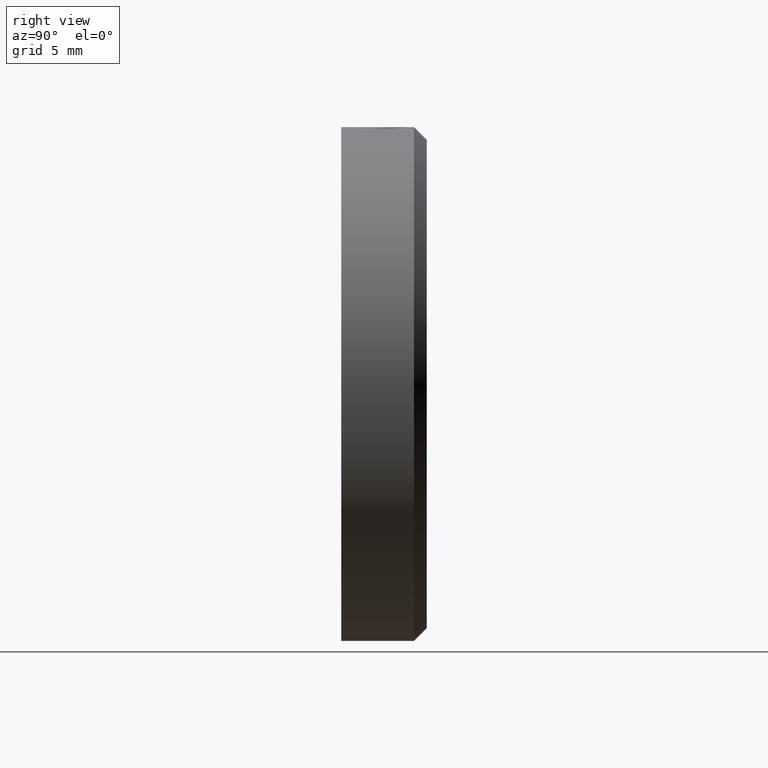
[diagram: clean part render]
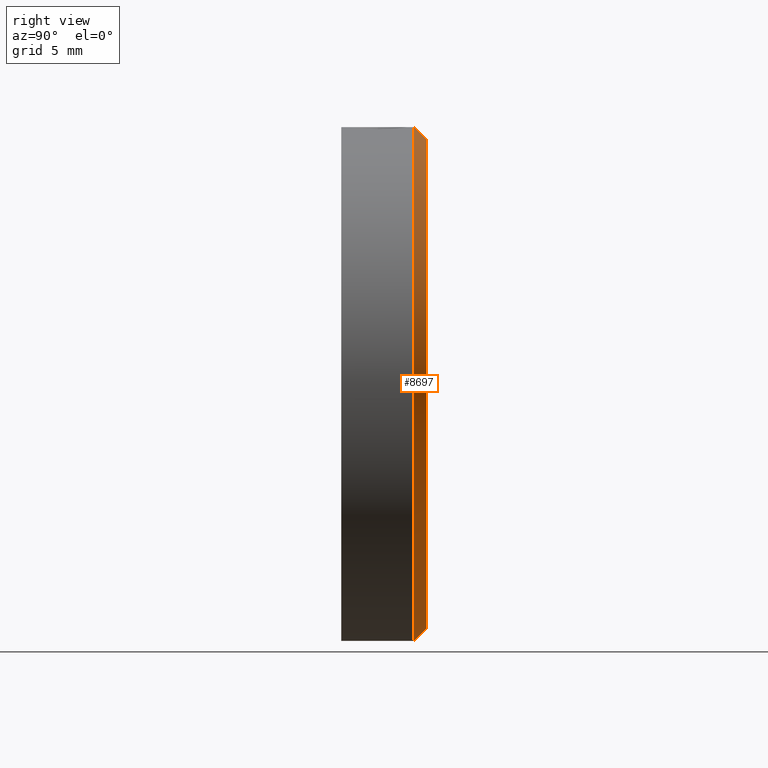
[diagram: same view with one face highlighted and labeled with its STEP entity id]
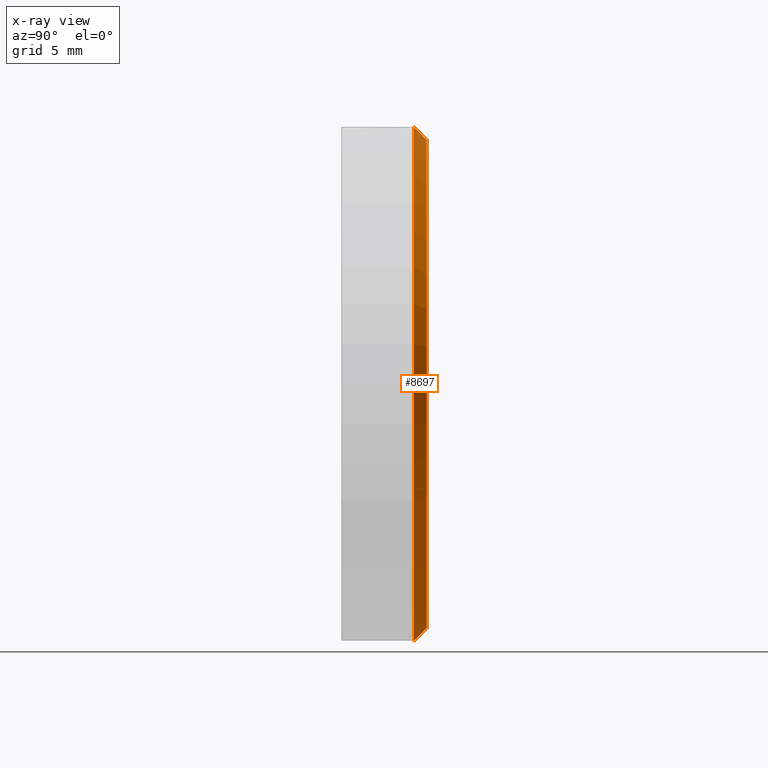
[diagram: x-ray of the same camera — body ghosted, the highlighted face saturated]
A machine part, right view. The second image highlights one B-rep face of the part: STEP entity #8697.
The next image is the same camera in x-ray: the body ghosted, the highlighted face saturated — about 0% of this face is hidden behind the body in this view.
In plain terms, the highlighted conical surface has half-angle 45 deg.
Its self-contained STEP definition (entity closure, byte-faithful):
#829 = DIRECTION ( 'NONE',  ( 0.000000000000000000, 0.000000000000000000, -1.000000000000000000 ) ) ;
#1017 = DIRECTION ( 'NONE',  ( 0.000000000000000000, 0.000000000000000000, 1.000000000000000000 ) ) ;
#1114 = CARTESIAN_POINT ( 'NONE',  ( 0.000000000000000000, 5.000000000000000000, 0.000000000000000000 ) ) ;
#1366 = AXIS2_PLACEMENT_3D ( 'NONE', #3684, #10574, #4844 ) ;
#1415 = VERTEX_POINT ( 'NONE', #12777 ) ;
#1786 = ORIENTED_EDGE ( 'NONE', *, *, #12443, .F. ) ;
#2995 = VERTEX_POINT ( 'NONE', #9603 ) ;
#3166 = EDGE_CURVE ( 'NONE', #2995, #10834, #11196, .T. ) ;
#3684 = CARTESIAN_POINT ( 'NONE',  ( 0.000000000000000000, 4.250000000000002665, 0.000000000000000000 ) ) ;
#3953 = LINE ( 'NONE', #6946, #5031 ) ;
#4844 = DIRECTION ( 'NONE',  ( 0.000000000000000000, 0.000000000000000000, 1.000000000000000000 ) ) ;
#5031 = VECTOR ( 'NONE', #12671, 1000.000000000000000 ) ;
#5395 = CONICAL_SURFACE ( 'NONE', #11092, 14.25000000000000533, 0.7853981633974460586 ) ;
#5625 = EDGE_CURVE ( 'NONE', #10834, #1415, #12388, .T. ) ;
#6946 = CARTESIAN_POINT ( 'NONE',  ( 1.745121688784979017E-15, 5.000000000000000000, 14.25000000000000533 ) ) ;
#7135 = CARTESIAN_POINT ( 'NONE',  ( 0.000000000000000000, 4.250000000000002665, -15.00000000000000000 ) ) ;
#7566 = AXIS2_PLACEMENT_3D ( 'NONE', #1114, #13768, #1017 ) ;
#7613 = CIRCLE ( 'NONE', #7566, 14.25000000000000533 ) ;
#7677 = CARTESIAN_POINT ( 'NONE',  ( 0.000000000000000000, 5.000000000000000000, 0.000000000000000000 ) ) ;
#8697 = ADVANCED_FACE ( 'NONE', ( #11979 ), #5395, .T. ) ;
#8866 = EDGE_CURVE ( 'NONE', #12827, #1415, #3953, .T. ) ;
#8991 = EDGE_LOOP ( 'NONE', ( #1786, #10516, #14477, #13799 ) ) ;
#9603 = CARTESIAN_POINT ( 'NONE',  ( 0.000000000000000000, 5.000000000000000000, -14.25000000000000533 ) ) ;
#10014 = DIRECTION ( 'NONE',  ( 0.000000000000000000, -0.7071067811865491270, -0.7071067811865459074 ) ) ;
#10516 = ORIENTED_EDGE ( 'NONE', *, *, #8866, .T. ) ;
#10574 = DIRECTION ( 'NONE',  ( 0.000000000000000000, -1.000000000000000000, 0.000000000000000000 ) ) ;
#10834 = VERTEX_POINT ( 'NONE', #7135 ) ;
#11092 = AXIS2_PLACEMENT_3D ( 'NONE', #7677, #12422, #829 ) ;
#11196 = LINE ( 'NONE', #13695, #13392 ) ;
#11979 = FACE_OUTER_BOUND ( 'NONE', #8991, .T. ) ;
#12388 = CIRCLE ( 'NONE', #1366, 15.00000000000000000 ) ;
#12422 = DIRECTION ( 'NONE',  ( 0.000000000000000000, -1.000000000000000000, 0.000000000000000000 ) ) ;
#12443 = EDGE_CURVE ( 'NONE', #12827, #2995, #7613, .T. ) ;
#12671 = DIRECTION ( 'NONE',  ( 8.659560562354911904E-17, -0.7071067811865491270, 0.7071067811865459074 ) ) ;
#12777 = CARTESIAN_POINT ( 'NONE',  ( 1.836970198721029589E-15, 4.250000000000002665, 15.00000000000000000 ) ) ;
#12827 = VERTEX_POINT ( 'NONE', #14737 ) ;
#13392 = VECTOR ( 'NONE', #10014, 1000.000000000000000 ) ;
#13695 = CARTESIAN_POINT ( 'NONE',  ( 0.000000000000000000, 5.000000000000000000, -14.25000000000000533 ) ) ;
#13768 = DIRECTION ( 'NONE',  ( 0.000000000000000000, 1.000000000000000000, 0.000000000000000000 ) ) ;
#13799 = ORIENTED_EDGE ( 'NONE', *, *, #3166, .F. ) ;
#14477 = ORIENTED_EDGE ( 'NONE', *, *, #5625, .F. ) ;
#14737 = CARTESIAN_POINT ( 'NONE',  ( 1.791045943753004303E-15, 5.000000000000000000, 14.25000000000000533 ) ) ;